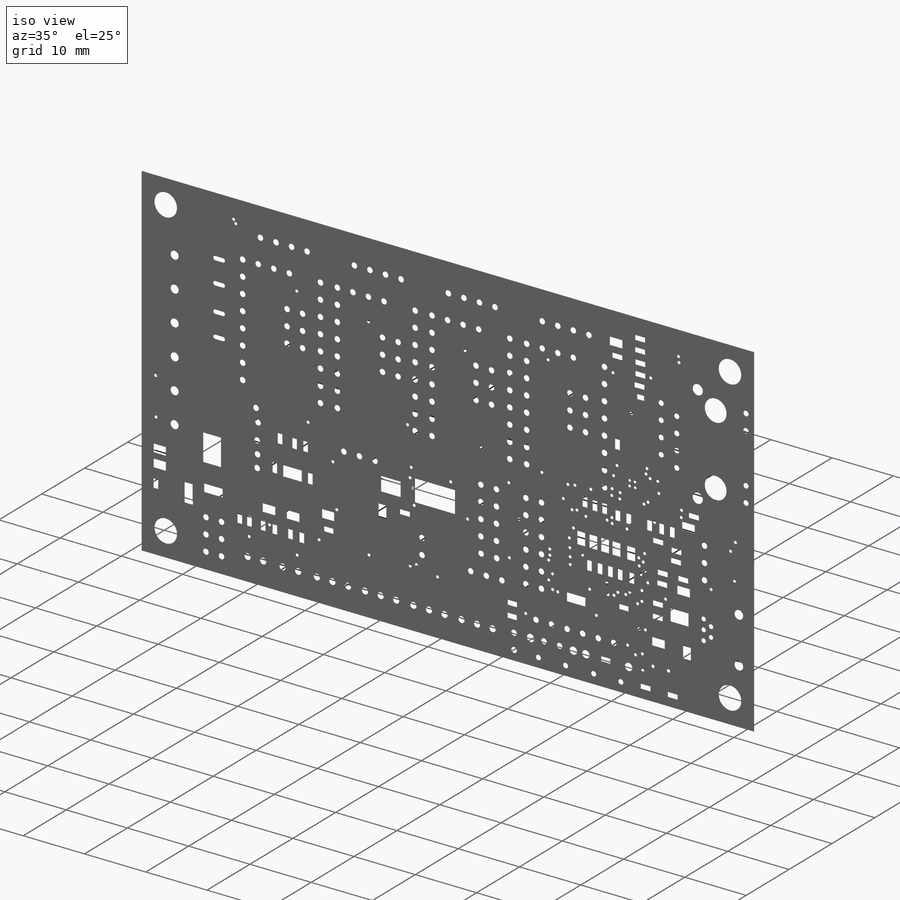
[diagram: iso view]
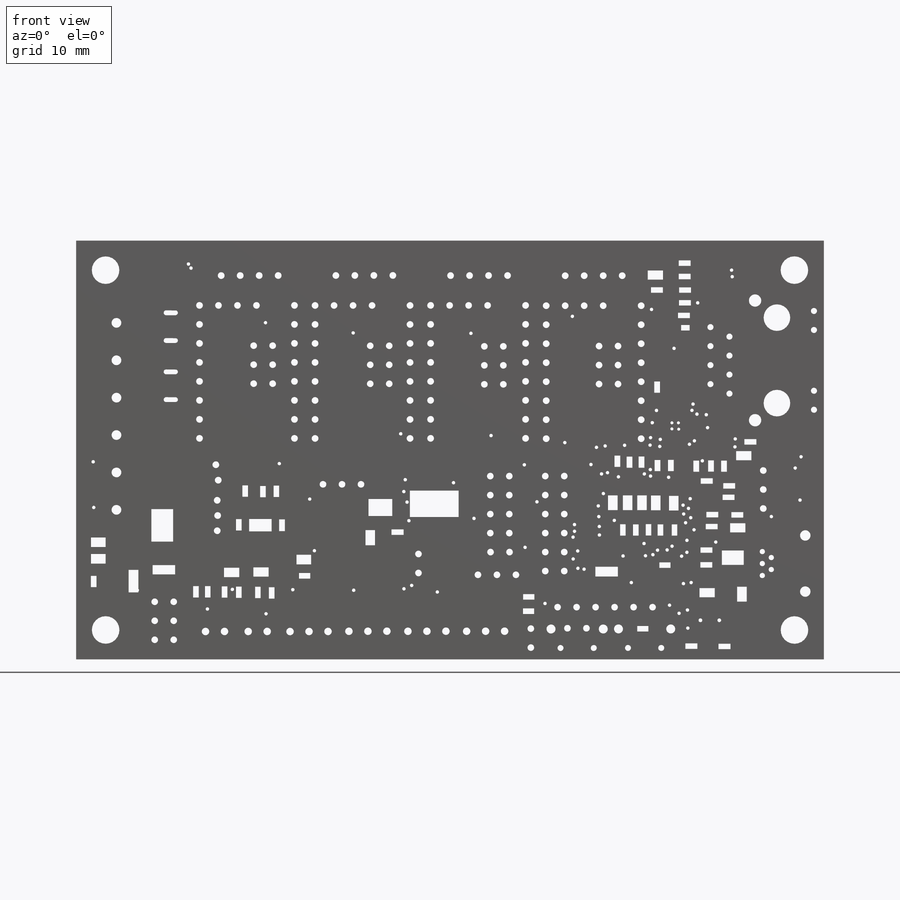
[diagram: front view]
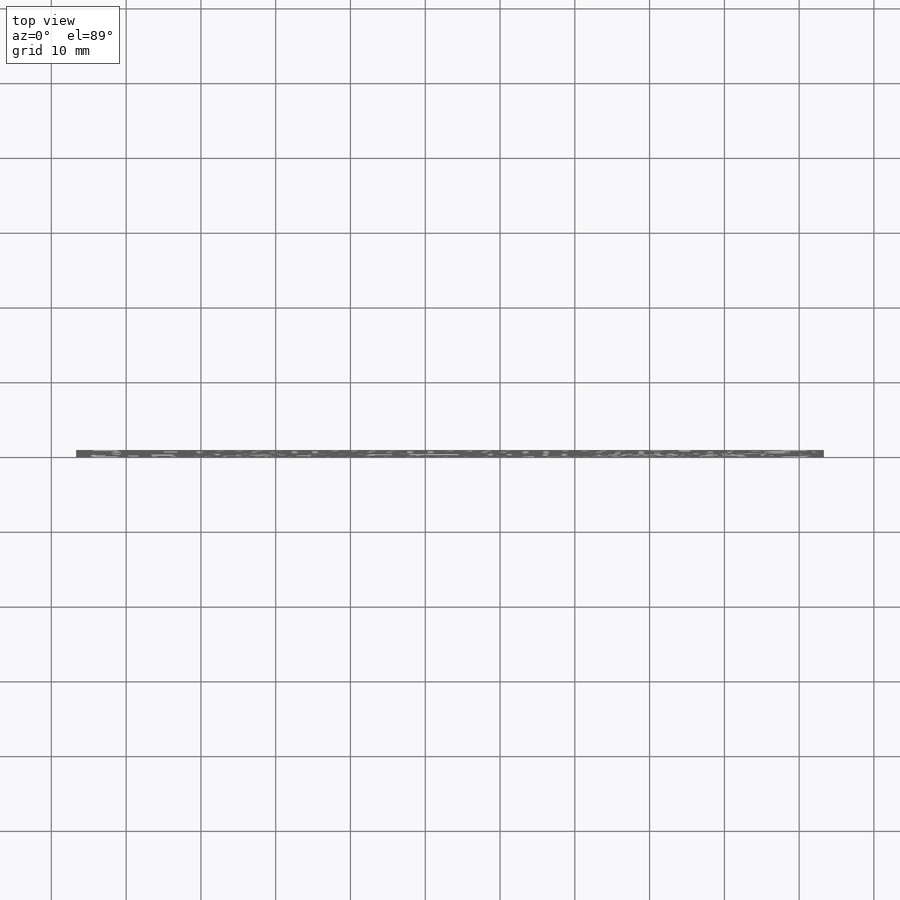
[diagram: top view]
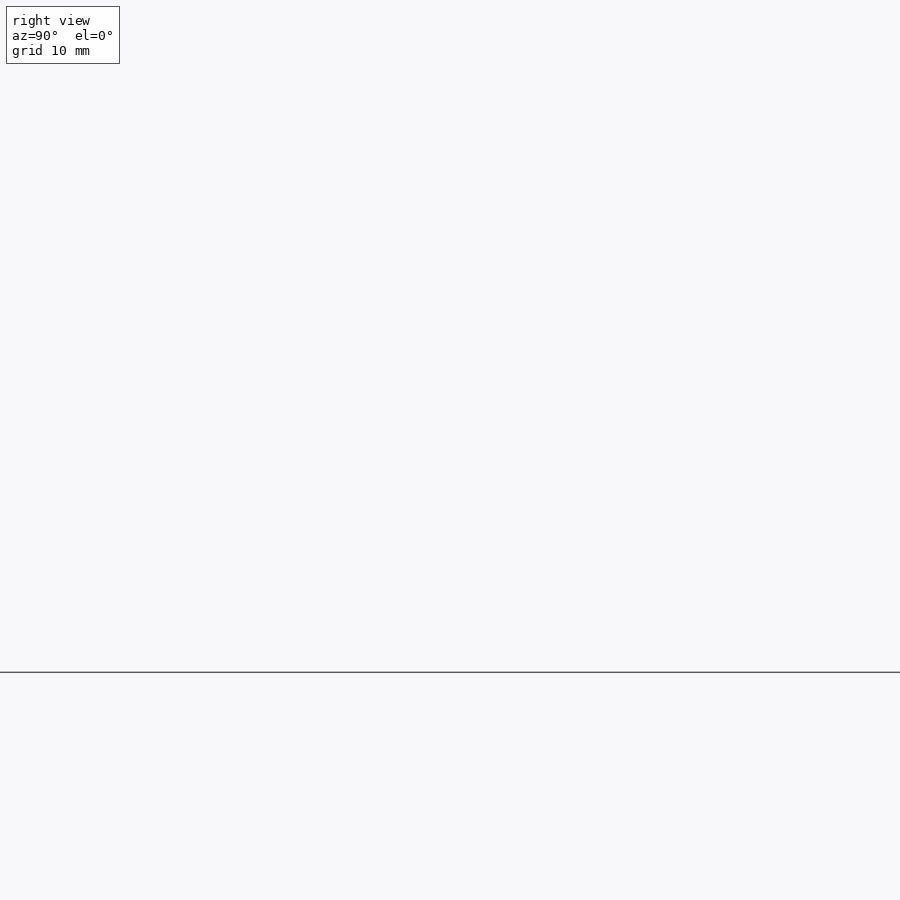
[diagram: right view]
SOLIDWORKS PART (.sldprt)
format: sldprt  version: not decoded by parser v0  size: 1,329,152 bytes
history: native  units: mm
features: sketch x4, extrude x3, chamfer x2, material x1 (+13 scaffold rows collapsed)
feature tree (23):
  scaffold x13  (default folders/planes/origin — collapsed)
  material  "Material <not specified>"
  sketch  "Sketch1"
  extrude  "Boss-Extrude1"  Depth=0.991mm
  sketch  "Sketch2"
  sketch  "Sketch3"  dims[D1=12.25mm D2=16.74mm D3=14.03mm]
  extrude  "Boss-Extrude2"  Depth=1.61mm
  chamfer  "Chamfer1"  Distance=0.61mm Angle=45deg
  chamfer  "Chamfer2"  Distance=0.61mm Angle=45deg
  sketch  "Sketch4"
  extrude  "Boss-Extrude3"  Depth=0.5mm
decode coverage: 6 of 9 modeling features carry decoded parameters
note: suppression state not decoded; provenance and decode notes live in map.json
